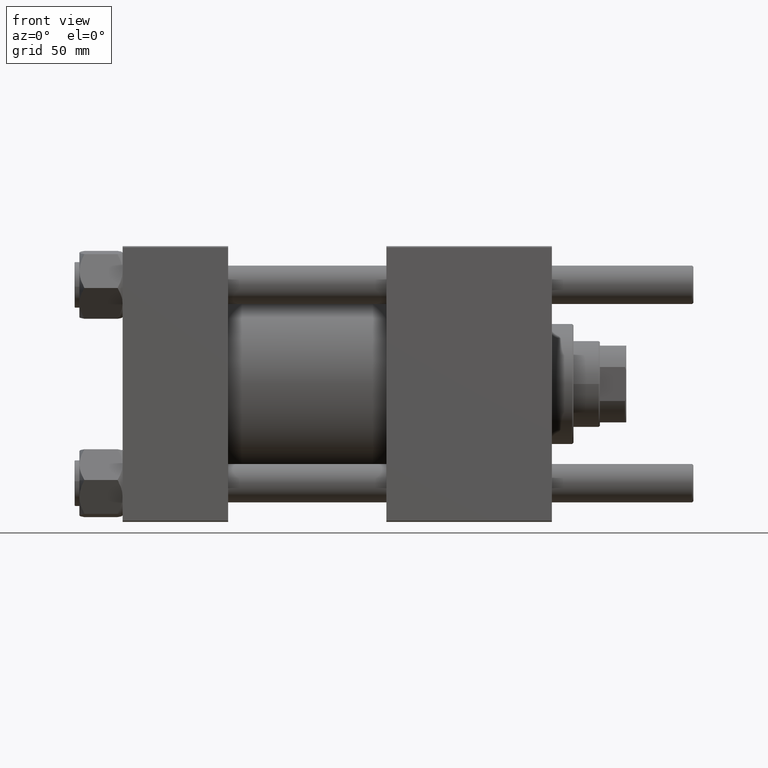
[diagram: clean part render]
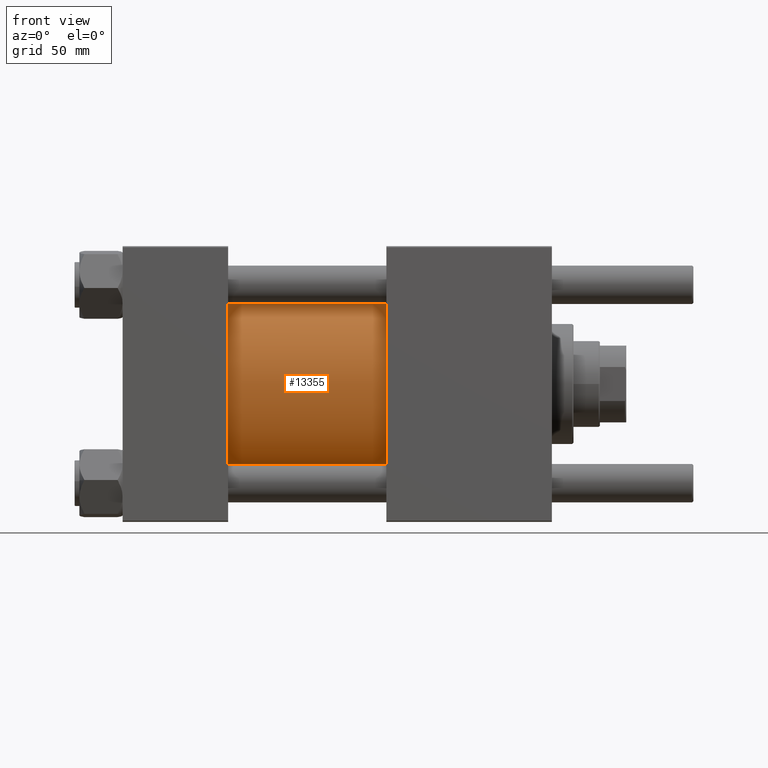
[diagram: same view with one face highlighted and labeled with its STEP entity id]
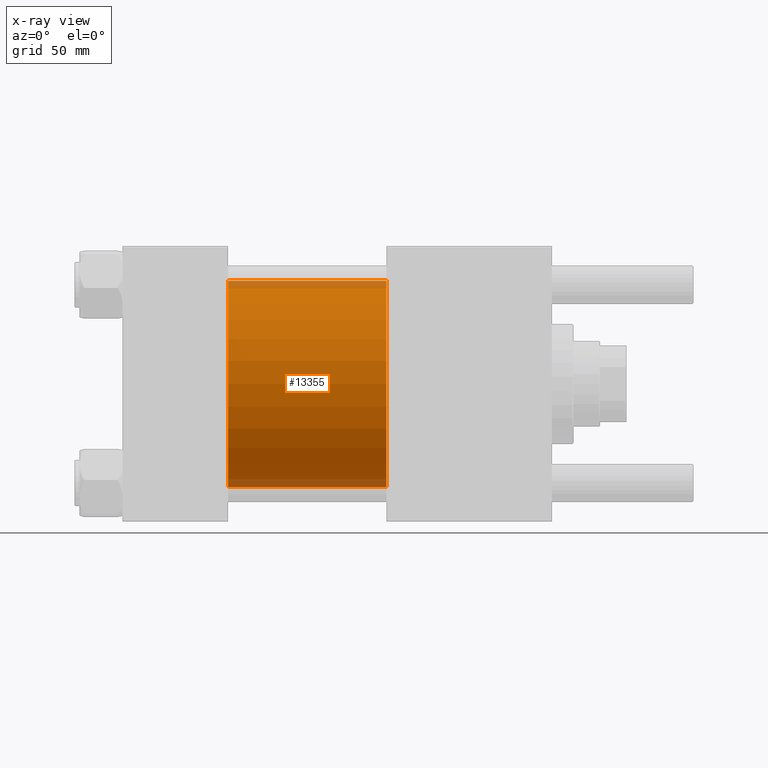
[diagram: x-ray of the same camera — body ghosted, the highlighted face saturated]
A machine part, front view. The second image highlights one B-rep face of the part: STEP entity #13355.
The next image is the same camera in x-ray: the body ghosted, the highlighted face saturated — about 8% of this face is hidden behind the body in this view.
In plain terms, the highlighted cylindrical surface (partial cylindrical patch) has radius 43 mm, axis along (-1, -0, -0).
Its self-contained STEP definition (entity closure, byte-faithful):
#707 = LINE ( 'NONE', #26149, #34772 ) ;
#2132 = CARTESIAN_POINT ( 'NONE',  ( 44.00000000000000000, -2.602085213965210642E-15, 0.000000000000000000 ) ) ;
#2678 = CIRCLE ( 'NONE', #20263, 43.00000000000000000 ) ;
#3779 = VECTOR ( 'NONE', #11221, 1000.000000000000000 ) ;
#3916 = CYLINDRICAL_SURFACE ( 'NONE', #24048, 43.00000000000000000 ) ;
#4205 = DIRECTION ( 'NONE',  ( -1.000000000000000000, -0.000000000000000000, -0.000000000000000000 ) ) ;
#9047 = EDGE_CURVE ( 'NONE', #30328, #13240, #2678, .T. ) ;
#11221 = DIRECTION ( 'NONE',  ( -1.000000000000000000, -0.000000000000000000, -0.000000000000000000 ) ) ;
#13240 = VERTEX_POINT ( 'NONE', #54523 ) ;
#13355 = ADVANCED_FACE ( 'NONE', ( #33389 ), #3916, .T. ) ;
#14128 = ORIENTED_EDGE ( 'NONE', *, *, #32614, .T. ) ;
#14988 = CARTESIAN_POINT ( 'NONE',  ( 110.0000000000000000, 2.663896022368408223E-15, -43.00000000000000000 ) ) ;
#19473 = EDGE_CURVE ( 'NONE', #46023, #36776, #34262, .T. ) ;
#20263 = AXIS2_PLACEMENT_3D ( 'NONE', #2132, #37376, #50662 ) ;
#20396 = DIRECTION ( 'NONE',  ( -1.000000000000000000, -0.000000000000000000, -0.000000000000000000 ) ) ;
#21208 = CARTESIAN_POINT ( 'NONE',  ( 110.0000000000000000, -2.602085213965210642E-15, 43.00000000000000000 ) ) ;
#21883 = CARTESIAN_POINT ( 'NONE',  ( 44.00000000000000000, -2.602085213965210642E-15, 43.00000000000000000 ) ) ;
#22857 = CARTESIAN_POINT ( 'NONE',  ( 110.0000000000000000, 2.663896022368408223E-15, -43.00000000000000000 ) ) ;
#24048 = AXIS2_PLACEMENT_3D ( 'NONE', #25001, #20396, #56511 ) ;
#25001 = CARTESIAN_POINT ( 'NONE',  ( 110.0000000000000000, -2.602085213965210642E-15, 0.000000000000000000 ) ) ;
#26149 = CARTESIAN_POINT ( 'NONE',  ( 110.0000000000000000, -2.602085213965210642E-15, 43.00000000000000000 ) ) ;
#26796 = DIRECTION ( 'NONE',  ( 1.000000000000000000, 0.000000000000000000, 0.000000000000000000 ) ) ;
#28552 = LINE ( 'NONE', #14988, #3779 ) ;
#30328 = VERTEX_POINT ( 'NONE', #21883 ) ;
#32614 = EDGE_CURVE ( 'NONE', #46023, #30328, #707, .T. ) ;
#33389 = FACE_OUTER_BOUND ( 'NONE', #53496, .T. ) ;
#34262 = CIRCLE ( 'NONE', #39796, 43.00000000000000000 ) ;
#34772 = VECTOR ( 'NONE', #4205, 1000.000000000000000 ) ;
#36012 = ORIENTED_EDGE ( 'NONE', *, *, #38069, .F. ) ;
#36776 = VERTEX_POINT ( 'NONE', #22857 ) ;
#37376 = DIRECTION ( 'NONE',  ( 1.000000000000000000, -0.000000000000000000, 0.000000000000000000 ) ) ;
#38069 = EDGE_CURVE ( 'NONE', #36776, #13240, #28552, .T. ) ;
#38819 = ORIENTED_EDGE ( 'NONE', *, *, #19473, .F. ) ;
#39796 = AXIS2_PLACEMENT_3D ( 'NONE', #48773, #26796, #44144 ) ;
#44144 = DIRECTION ( 'NONE',  ( 0.000000000000000000, 0.000000000000000000, -1.000000000000000000 ) ) ;
#46023 = VERTEX_POINT ( 'NONE', #21208 ) ;
#48773 = CARTESIAN_POINT ( 'NONE',  ( 110.0000000000000000, -2.602085213965210642E-15, 0.000000000000000000 ) ) ;
#50662 = DIRECTION ( 'NONE',  ( 0.000000000000000000, 0.000000000000000000, 1.000000000000000000 ) ) ;
#52971 = ORIENTED_EDGE ( 'NONE', *, *, #9047, .T. ) ;
#53496 = EDGE_LOOP ( 'NONE', ( #36012, #38819, #14128, #52971 ) ) ;
#54523 = CARTESIAN_POINT ( 'NONE',  ( 44.00000000000000000, 2.663896022368408223E-15, -43.00000000000000000 ) ) ;
#56511 = DIRECTION ( 'NONE',  ( 0.000000000000000000, 0.000000000000000000, 1.000000000000000000 ) ) ;